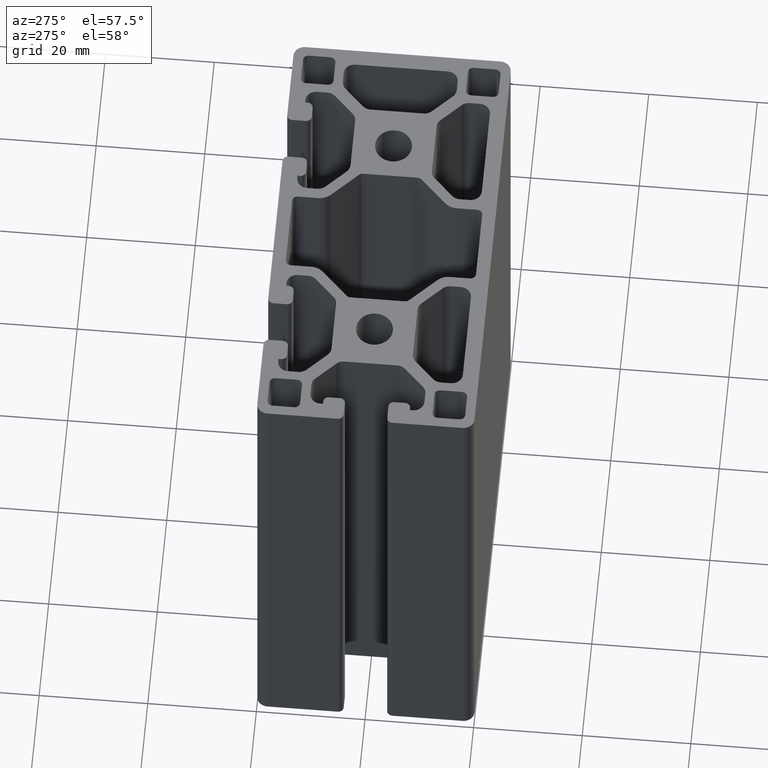
[diagram: clean part render]
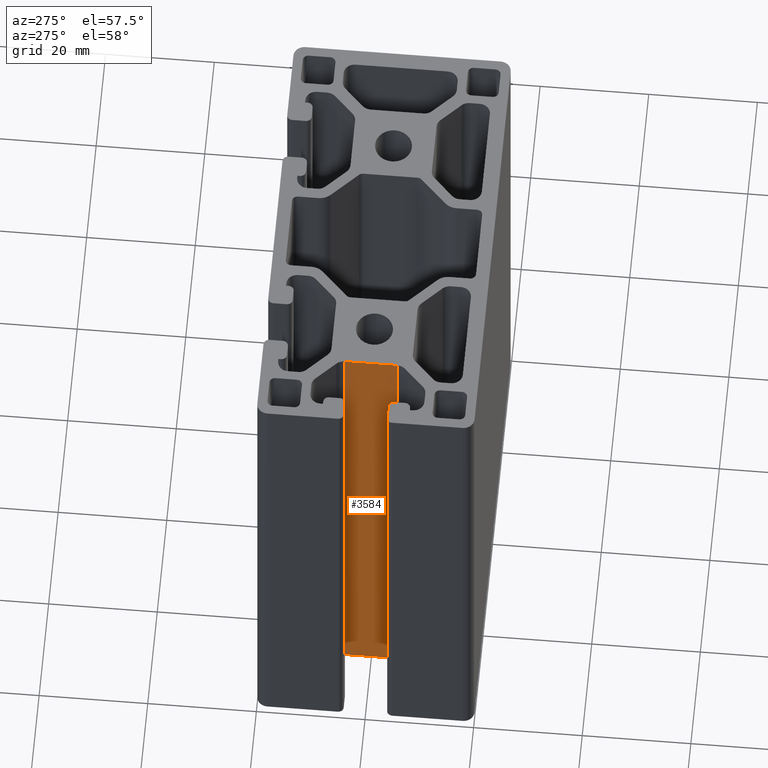
[diagram: same view with one face highlighted and labeled with its STEP entity id]
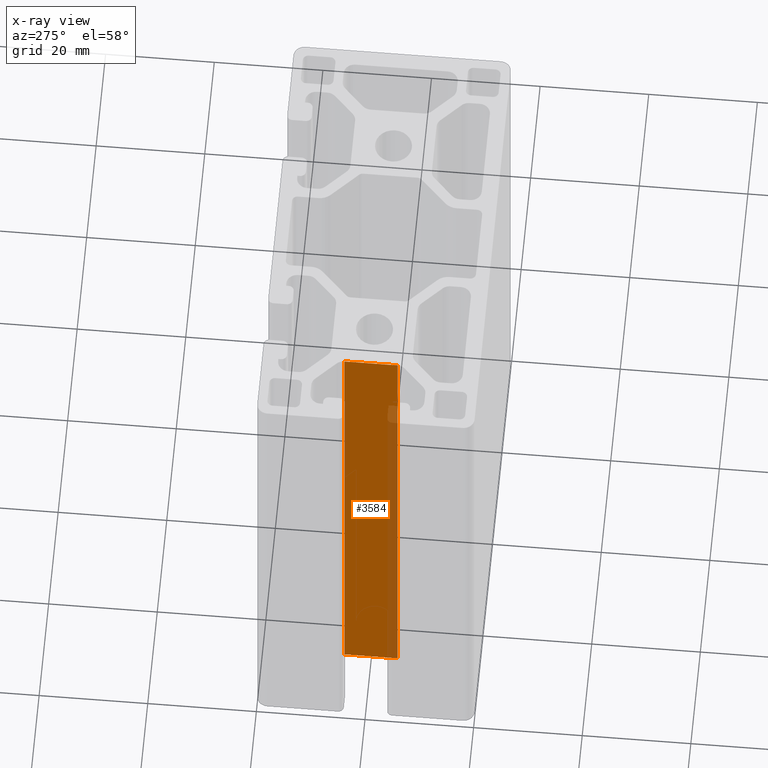
[diagram: x-ray of the same camera — body ghosted, the highlighted face saturated]
A machine part, auxiliary view. The second image highlights one B-rep face of the part: STEP entity #3584.
The next image is the same camera in x-ray: the body ghosted, the highlighted face saturated — about 17% of this face is hidden behind the body in this view.
In plain terms, the highlighted planar face has unit normal (1, 0, 0).
Its self-contained STEP definition (entity closure, byte-faithful):
#89=PLANE('',#3874);
#236=FACE_OUTER_BOUND('',#419,.T.);
#419=EDGE_LOOP('',(#2733,#2734,#2735,#2736));
#727=LINE('',#5739,#1089);
#728=LINE('',#5742,#1090);
#729=LINE('',#5744,#1091);
#730=LINE('',#5745,#1092);
#1089=VECTOR('',#4655,100.);
#1090=VECTOR('',#4658,9.80761184457488);
#1091=VECTOR('',#4659,9.80761184457488);
#1092=VECTOR('',#4660,100.);
#1631=VERTEX_POINT('',#5735);
#1632=VERTEX_POINT('',#5737);
#1633=VERTEX_POINT('',#5741);
#1634=VERTEX_POINT('',#5743);
#2093=EDGE_CURVE('',#1632,#1631,#727,.T.);
#2094=EDGE_CURVE('',#1631,#1633,#728,.T.);
#2095=EDGE_CURVE('',#1634,#1632,#729,.T.);
#2096=EDGE_CURVE('',#1634,#1633,#730,.T.);
#2733=ORIENTED_EDGE('',*,*,#2094,.F.);
#2734=ORIENTED_EDGE('',*,*,#2093,.F.);
#2735=ORIENTED_EDGE('',*,*,#2095,.F.);
#2736=ORIENTED_EDGE('',*,*,#2096,.T.);
#3584=ADVANCED_FACE('',(#236),#89,.F.);
#3874=AXIS2_PLACEMENT_3D('',#5740,#4656,#4657);
#4655=DIRECTION('',(0.,0.,1.));
#4656=DIRECTION('center_axis',(1.,0.,0.));
#4657=DIRECTION('ref_axis',(0.,1.,0.));
#4658=DIRECTION('',(0.,-1.,0.));
#4659=DIRECTION('',(0.,1.,0.));
#4660=DIRECTION('',(0.,0.,1.));
#5735=CARTESIAN_POINT('',(-27.5,4.90380592228744,100.));
#5737=CARTESIAN_POINT('',(-27.5,4.90380592228744,0.));
#5739=CARTESIAN_POINT('',(-27.5,4.90380592228744,0.));
#5740=CARTESIAN_POINT('Origin',(-27.5,-4.90380592228743,0.));
#5741=CARTESIAN_POINT('',(-27.5,-4.90380592228743,100.));
#5742=CARTESIAN_POINT('',(-27.5,-2.45190296114371,100.));
#5743=CARTESIAN_POINT('',(-27.5,-4.90380592228743,0.));
#5744=CARTESIAN_POINT('',(-27.5,-2.45190296114371,0.));
#5745=CARTESIAN_POINT('',(-27.5,-4.90380592228743,0.));